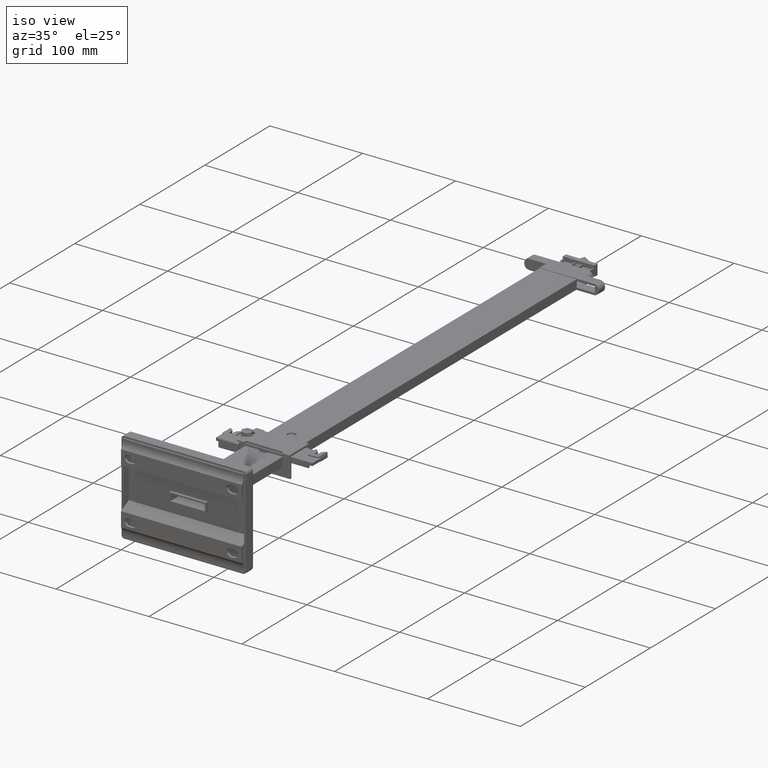
[diagram: clean part render]
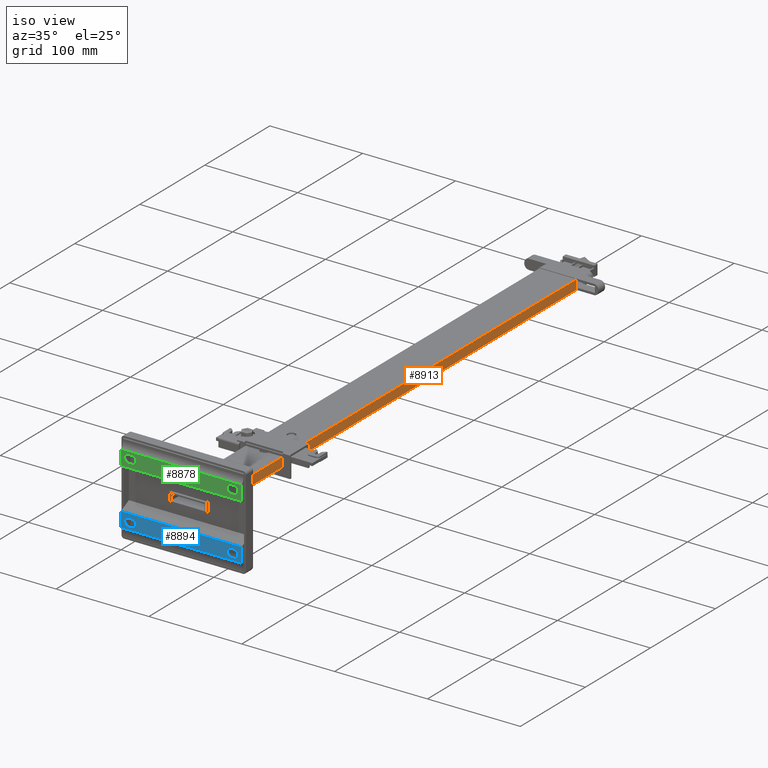
[diagram: same view with three faces highlighted in distinct colors, each labeled with its STEP entity id]
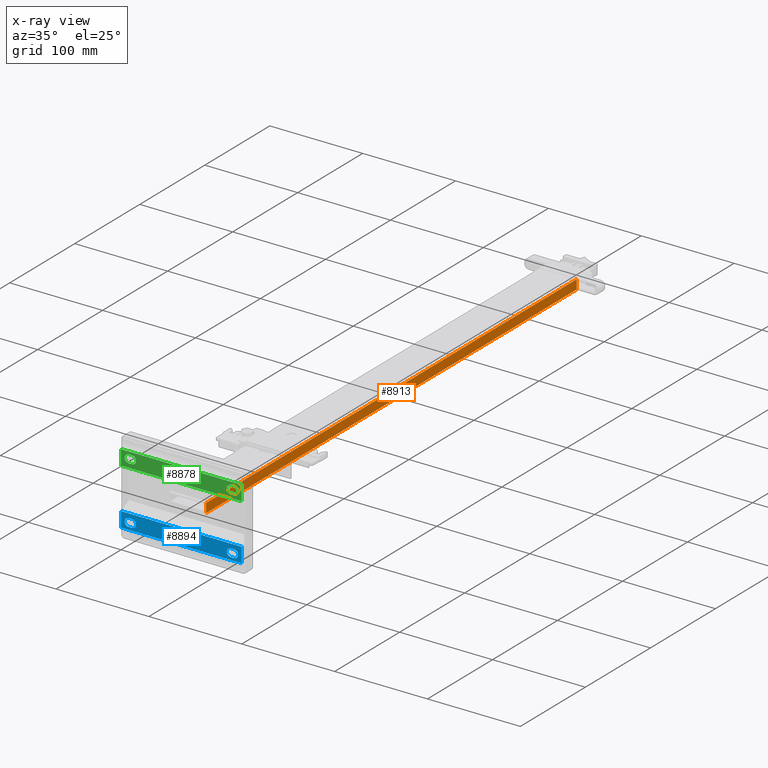
[diagram: x-ray of the same camera — body ghosted, the three highlighted faces saturated]
A machine part, iso view with three faces highlighted in distinct colors.
The next image is the same camera in x-ray (body ghosted, the three faces saturated) — at least one of them is partly hidden behind the body in this view.
Their STEP definitions:

[orange] entity #8913 — the highlighted planar face has unit normal (1, 0, -0).
#1055=FACE_OUTER_BOUND('',#1572,.T.);
#1572=EDGE_LOOP('',(#6222,#6223,#6224,#6225));
#2151=LINE('',#12637,#2964);
#2152=LINE('',#12640,#2965);
#2153=LINE('',#12642,#2966);
#2154=LINE('',#12643,#2967);
#2964=VECTOR('',#10483,10.);
#2965=VECTOR('',#10486,10.);
#2966=VECTOR('',#10487,10.);
#2967=VECTOR('',#10488,10.);
#3763=VERTEX_POINT('',#12633);
#3764=VERTEX_POINT('',#12635);
#3765=VERTEX_POINT('',#12639);
#3766=VERTEX_POINT('',#12641);
#4711=EDGE_CURVE('',#3763,#3764,#2151,.T.);
#4712=EDGE_CURVE('',#3765,#3763,#2152,.T.);
#4713=EDGE_CURVE('',#3766,#3764,#2153,.T.);
#4714=EDGE_CURVE('',#3765,#3766,#2154,.T.);
#6222=ORIENTED_EDGE('',*,*,#4712,.T.);
#6223=ORIENTED_EDGE('',*,*,#4711,.T.);
#6224=ORIENTED_EDGE('',*,*,#4713,.F.);
#6225=ORIENTED_EDGE('',*,*,#4714,.F.);
#8680=PLANE('',#9597);
#8913=ADVANCED_FACE('',(#1055),#8680,.T.);
#9597=AXIS2_PLACEMENT_3D('',#12638,#10484,#10485);
#10483=DIRECTION('',(1.,0.,0.));
#10484=DIRECTION('center_axis',(0.,-1.,0.));
#10485=DIRECTION('ref_axis',(0.,0.,-1.));
#10486=DIRECTION('',(0.,0.,-1.));
#10487=DIRECTION('',(0.,0.,-1.));
#10488=DIRECTION('',(1.,0.,0.));
#12633=CARTESIAN_POINT('',(0.,0.,-10.));
#12635=CARTESIAN_POINT('',(570.,0.,-10.));
#12637=CARTESIAN_POINT('',(0.,0.,-10.));
#12638=CARTESIAN_POINT('Origin',(0.,0.,0.));
#12639=CARTESIAN_POINT('',(0.,0.,0.));
#12640=CARTESIAN_POINT('',(0.,0.,0.));
#12641=CARTESIAN_POINT('',(570.,0.,0.));
#12642=CARTESIAN_POINT('',(570.,0.,0.));
#12643=CARTESIAN_POINT('',(0.,0.,0.));

[blue] entity #8894 — the highlighted planar face has unit normal (0, -1, 0).
#562=FACE_BOUND('',#1539,.T.);
#563=FACE_BOUND('',#1540,.T.);
#596=CIRCLE('',#9503,4.3);
#598=CIRCLE('',#9507,4.3);
#604=CIRCLE('',#9519,4.3);
#606=CIRCLE('',#9523,4.3);
#1036=FACE_OUTER_BOUND('',#1538,.T.);
#1538=EDGE_LOOP('',(#6090,#6091,#6092,#6093));
#1539=EDGE_LOOP('',(#6094,#6095,#6096,#6097));
#1540=EDGE_LOOP('',(#6098,#6099,#6100,#6101));
#2031=LINE('',#12315,#2844);
#2035=LINE('',#12327,#2848);
#2047=LINE('',#12363,#2860);
#2051=LINE('',#12375,#2864);
#2116=LINE('',#12532,#2929);
#2117=LINE('',#12535,#2930);
#2118=LINE('',#12537,#2931);
#2119=LINE('',#12538,#2932);
#2844=VECTOR('',#10171,10.);
#2848=VECTOR('',#10183,10.);
#2860=VECTOR('',#10219,10.);
#2864=VECTOR('',#10231,10.);
#2929=VECTOR('',#10376,10.);
#2930=VECTOR('',#10379,10.);
#2931=VECTOR('',#10380,10.);
#2932=VECTOR('',#10381,10.);
#3657=VERTEX_POINT('',#12312);
#3658=VERTEX_POINT('',#12314);
#3660=VERTEX_POINT('',#12320);
#3662=VERTEX_POINT('',#12326);
#3673=VERTEX_POINT('',#12360);
#3674=VERTEX_POINT('',#12362);
#3676=VERTEX_POINT('',#12368);
#3678=VERTEX_POINT('',#12374);
#3729=VERTEX_POINT('',#12528);
#3730=VERTEX_POINT('',#12530);
#3731=VERTEX_POINT('',#12534);
#3732=VERTEX_POINT('',#12536);
#4551=EDGE_CURVE('',#3658,#3657,#2031,.T.);
#4554=EDGE_CURVE('',#3660,#3658,#596,.T.);
#4557=EDGE_CURVE('',#3662,#3660,#2035,.T.);
#4560=EDGE_CURVE('',#3657,#3662,#598,.T.);
#4575=EDGE_CURVE('',#3674,#3673,#2047,.T.);
#4578=EDGE_CURVE('',#3676,#3674,#604,.T.);
#4581=EDGE_CURVE('',#3678,#3676,#2051,.T.);
#4584=EDGE_CURVE('',#3673,#3678,#606,.T.);
#4660=EDGE_CURVE('',#3729,#3730,#2116,.T.);
#4661=EDGE_CURVE('',#3731,#3729,#2117,.T.);
#4662=EDGE_CURVE('',#3732,#3730,#2118,.T.);
#4663=EDGE_CURVE('',#3731,#3732,#2119,.T.);
#6090=ORIENTED_EDGE('',*,*,#4661,.T.);
#6091=ORIENTED_EDGE('',*,*,#4660,.T.);
#6092=ORIENTED_EDGE('',*,*,#4662,.F.);
#6093=ORIENTED_EDGE('',*,*,#4663,.F.);
#6094=ORIENTED_EDGE('',*,*,#4557,.T.);
#6095=ORIENTED_EDGE('',*,*,#4554,.T.);
#6096=ORIENTED_EDGE('',*,*,#4551,.T.);
#6097=ORIENTED_EDGE('',*,*,#4560,.T.);
#6098=ORIENTED_EDGE('',*,*,#4581,.T.);
#6099=ORIENTED_EDGE('',*,*,#4578,.T.);
#6100=ORIENTED_EDGE('',*,*,#4575,.T.);
#6101=ORIENTED_EDGE('',*,*,#4584,.T.);
#8669=PLANE('',#9561);
#8894=ADVANCED_FACE('',(#1036,#562,#563),#8669,.T.);
#9503=AXIS2_PLACEMENT_3D('',#12321,#10177,#10178);
#9507=AXIS2_PLACEMENT_3D('',#12331,#10189,#10190);
#9519=AXIS2_PLACEMENT_3D('',#12369,#10225,#10226);
#9523=AXIS2_PLACEMENT_3D('',#12379,#10237,#10238);
#9561=AXIS2_PLACEMENT_3D('',#12533,#10377,#10378);
#10171=DIRECTION('',(1.,0.,0.));
#10177=DIRECTION('center_axis',(0.,1.,0.));
#10178=DIRECTION('ref_axis',(0.,0.,-1.));
#10183=DIRECTION('',(-1.,0.,0.));
#10189=DIRECTION('center_axis',(0.,1.,0.));
#10190=DIRECTION('ref_axis',(-4.13106241720988E-15,0.,1.));
#10219=DIRECTION('',(1.,0.,0.));
#10225=DIRECTION('center_axis',(0.,1.,0.));
#10226=DIRECTION('ref_axis',(1.54914840645371E-15,0.,-1.));
#10231=DIRECTION('',(-1.,0.,0.));
#10237=DIRECTION('center_axis',(0.,1.,0.));
#10238=DIRECTION('ref_axis',(1.03276560430247E-15,0.,1.));
#10376=DIRECTION('',(1.,0.,0.));
#10377=DIRECTION('center_axis',(0.,-1.,0.));
#10378=DIRECTION('ref_axis',(0.,0.,-1.));
#10379=DIRECTION('',(0.,0.,-1.));
#10380=DIRECTION('',(0.,0.,-1.));
#10381=DIRECTION('',(1.,0.,0.));
#12312=CARTESIAN_POINT('',(121.75,0.,-26.7));
#12314=CARTESIAN_POINT('',(118.25,0.,-26.7));
#12315=CARTESIAN_POINT('',(60.875,0.,-26.7));
#12320=CARTESIAN_POINT('',(118.25,0.,-35.3));
#12321=CARTESIAN_POINT('Origin',(118.25,0.,-31.));
#12326=CARTESIAN_POINT('',(121.75,0.,-35.3));
#12327=CARTESIAN_POINT('',(59.125,0.,-35.3));
#12331=CARTESIAN_POINT('Origin',(121.75,0.,-31.));
#12360=CARTESIAN_POINT('',(11.75,0.,-26.7));
#12362=CARTESIAN_POINT('',(8.24999999999999,0.,-26.7));
#12363=CARTESIAN_POINT('',(5.875,0.,-26.7));
#12368=CARTESIAN_POINT('',(8.25000000000001,0.,-35.3));
#12369=CARTESIAN_POINT('Origin',(8.25,0.,-31.));
#12374=CARTESIAN_POINT('',(11.75,0.,-35.3));
#12375=CARTESIAN_POINT('',(4.125,0.,-35.3));
#12379=CARTESIAN_POINT('Origin',(11.75,0.,-31.));
#12528=CARTESIAN_POINT('',(0.,0.,-38.15));
#12530=CARTESIAN_POINT('',(130.,0.,-38.15));
#12532=CARTESIAN_POINT('',(0.,0.,-38.15));
#12533=CARTESIAN_POINT('Origin',(0.,0.,-22.15));
#12534=CARTESIAN_POINT('',(0.,0.,-22.15));
#12535=CARTESIAN_POINT('',(0.,0.,-22.15));
#12536=CARTESIAN_POINT('',(130.,0.,-22.15));
#12537=CARTESIAN_POINT('',(130.,0.,-22.15));
#12538=CARTESIAN_POINT('',(0.,0.,-22.15));

[green] entity #8878 — the highlighted planar face has unit normal (0, -1, 0).
#555=FACE_BOUND('',#1516,.T.);
#556=FACE_BOUND('',#1517,.T.);
#599=CIRCLE('',#9509,4.3);
#601=CIRCLE('',#9513,4.3);
#607=CIRCLE('',#9526,4.3);
#609=CIRCLE('',#9530,4.3);
#1020=FACE_OUTER_BOUND('',#1515,.T.);
#1515=EDGE_LOOP('',(#5998,#5999,#6000,#6001));
#1516=EDGE_LOOP('',(#6002,#6003,#6004,#6005));
#1517=EDGE_LOOP('',(#6006,#6007,#6008,#6009));
#2039=LINE('',#12343,#2852);
#2043=LINE('',#12354,#2856);
#2053=LINE('',#12383,#2866);
#2058=LINE('',#12397,#2871);
#2076=LINE('',#12436,#2889);
#2077=LINE('',#12439,#2890);
#2078=LINE('',#12441,#2891);
#2079=LINE('',#12442,#2892);
#2852=VECTOR('',#10201,10.);
#2856=VECTOR('',#10213,10.);
#2866=VECTOR('',#10241,10.);
#2871=VECTOR('',#10254,10.);
#2889=VECTOR('',#10288,10.);
#2890=VECTOR('',#10291,10.);
#2891=VECTOR('',#10292,10.);
#2892=VECTOR('',#10293,10.);
#3663=VERTEX_POINT('',#12333);
#3664=VERTEX_POINT('',#12334);
#3667=VERTEX_POINT('',#12342);
#3669=VERTEX_POINT('',#12348);
#3679=VERTEX_POINT('',#12381);
#3680=VERTEX_POINT('',#12382);
#3683=VERTEX_POINT('',#12390);
#3685=VERTEX_POINT('',#12396);
#3696=VERTEX_POINT('',#12430);
#3698=VERTEX_POINT('',#12434);
#3699=VERTEX_POINT('',#12438);
#3700=VERTEX_POINT('',#12440);
#4561=EDGE_CURVE('',#3663,#3664,#599,.T.);
#4565=EDGE_CURVE('',#3664,#3667,#2039,.T.);
#4568=EDGE_CURVE('',#3667,#3669,#601,.T.);
#4571=EDGE_CURVE('',#3669,#3663,#2043,.T.);
#4585=EDGE_CURVE('',#3679,#3680,#2053,.T.);
#4589=EDGE_CURVE('',#3680,#3683,#607,.T.);
#4592=EDGE_CURVE('',#3683,#3685,#2058,.T.);
#4595=EDGE_CURVE('',#3685,#3679,#609,.T.);
#4612=EDGE_CURVE('',#3696,#3698,#2076,.T.);
#4613=EDGE_CURVE('',#3696,#3699,#2077,.T.);
#4614=EDGE_CURVE('',#3700,#3698,#2078,.T.);
#4615=EDGE_CURVE('',#3699,#3700,#2079,.T.);
#5998=ORIENTED_EDGE('',*,*,#4613,.F.);
#5999=ORIENTED_EDGE('',*,*,#4612,.T.);
#6000=ORIENTED_EDGE('',*,*,#4614,.F.);
#6001=ORIENTED_EDGE('',*,*,#4615,.F.);
#6002=ORIENTED_EDGE('',*,*,#4568,.T.);
#6003=ORIENTED_EDGE('',*,*,#4571,.T.);
#6004=ORIENTED_EDGE('',*,*,#4561,.T.);
#6005=ORIENTED_EDGE('',*,*,#4565,.T.);
#6006=ORIENTED_EDGE('',*,*,#4592,.T.);
#6007=ORIENTED_EDGE('',*,*,#4595,.T.);
#6008=ORIENTED_EDGE('',*,*,#4585,.T.);
#6009=ORIENTED_EDGE('',*,*,#4589,.T.);
#8657=PLANE('',#9537);
#8878=ADVANCED_FACE('',(#1020,#555,#556),#8657,.T.);
#9509=AXIS2_PLACEMENT_3D('',#12335,#10193,#10194);
#9513=AXIS2_PLACEMENT_3D('',#12349,#10206,#10207);
#9526=AXIS2_PLACEMENT_3D('',#12391,#10247,#10248);
#9530=AXIS2_PLACEMENT_3D('',#12402,#10259,#10260);
#9537=AXIS2_PLACEMENT_3D('',#12437,#10289,#10290);
#10193=DIRECTION('center_axis',(0.,1.,0.));
#10194=DIRECTION('ref_axis',(0.,0.,-1.));
#10201=DIRECTION('',(1.,0.,0.));
#10206=DIRECTION('center_axis',(0.,1.,0.));
#10207=DIRECTION('ref_axis',(-4.13106241720988E-15,0.,1.));
#10213=DIRECTION('',(-1.,0.,0.));
#10241=DIRECTION('',(1.,0.,0.));
#10247=DIRECTION('center_axis',(0.,1.,0.));
#10248=DIRECTION('ref_axis',(0.,0.,1.));
#10254=DIRECTION('',(-1.,0.,0.));
#10259=DIRECTION('center_axis',(0.,1.,0.));
#10260=DIRECTION('ref_axis',(2.06553120860494E-15,0.,-1.));
#10288=DIRECTION('',(1.,0.,0.));
#10289=DIRECTION('center_axis',(0.,-1.,0.));
#10290=DIRECTION('ref_axis',(0.,0.,-1.));
#10291=DIRECTION('',(0.,0.,1.));
#10292=DIRECTION('',(0.,0.,-1.));
#10293=DIRECTION('',(1.,0.,0.));
#12333=CARTESIAN_POINT('',(118.25,0.,26.7));
#12334=CARTESIAN_POINT('',(118.25,0.,35.3));
#12335=CARTESIAN_POINT('Origin',(118.25,0.,31.));
#12342=CARTESIAN_POINT('',(121.75,0.,35.3));
#12343=CARTESIAN_POINT('',(60.875,0.,35.3));
#12348=CARTESIAN_POINT('',(121.75,0.,26.7));
#12349=CARTESIAN_POINT('Origin',(121.75,0.,31.));
#12354=CARTESIAN_POINT('',(59.125,0.,26.7));
#12381=CARTESIAN_POINT('',(8.24999999999999,0.,35.3));
#12382=CARTESIAN_POINT('',(11.75,0.,35.3));
#12383=CARTESIAN_POINT('',(5.875,0.,35.3));
#12390=CARTESIAN_POINT('',(11.75,0.,26.7));
#12391=CARTESIAN_POINT('Origin',(11.75,0.,31.));
#12396=CARTESIAN_POINT('',(8.25000000000001,0.,26.7));
#12397=CARTESIAN_POINT('',(4.12500000000001,0.,26.7));
#12402=CARTESIAN_POINT('Origin',(8.25,0.,31.));
#12430=CARTESIAN_POINT('',(0.,0.,22.15));
#12434=CARTESIAN_POINT('',(130.,0.,22.15));
#12436=CARTESIAN_POINT('',(0.,0.,22.15));
#12437=CARTESIAN_POINT('Origin',(0.,0.,38.15));
#12438=CARTESIAN_POINT('',(0.,1.11022302462516E-15,38.15));
#12439=CARTESIAN_POINT('',(0.,0.,22.15));
#12440=CARTESIAN_POINT('',(130.,0.,38.15));
#12441=CARTESIAN_POINT('',(130.,0.,22.15));
#12442=CARTESIAN_POINT('',(0.,1.11022302462516E-15,38.15));